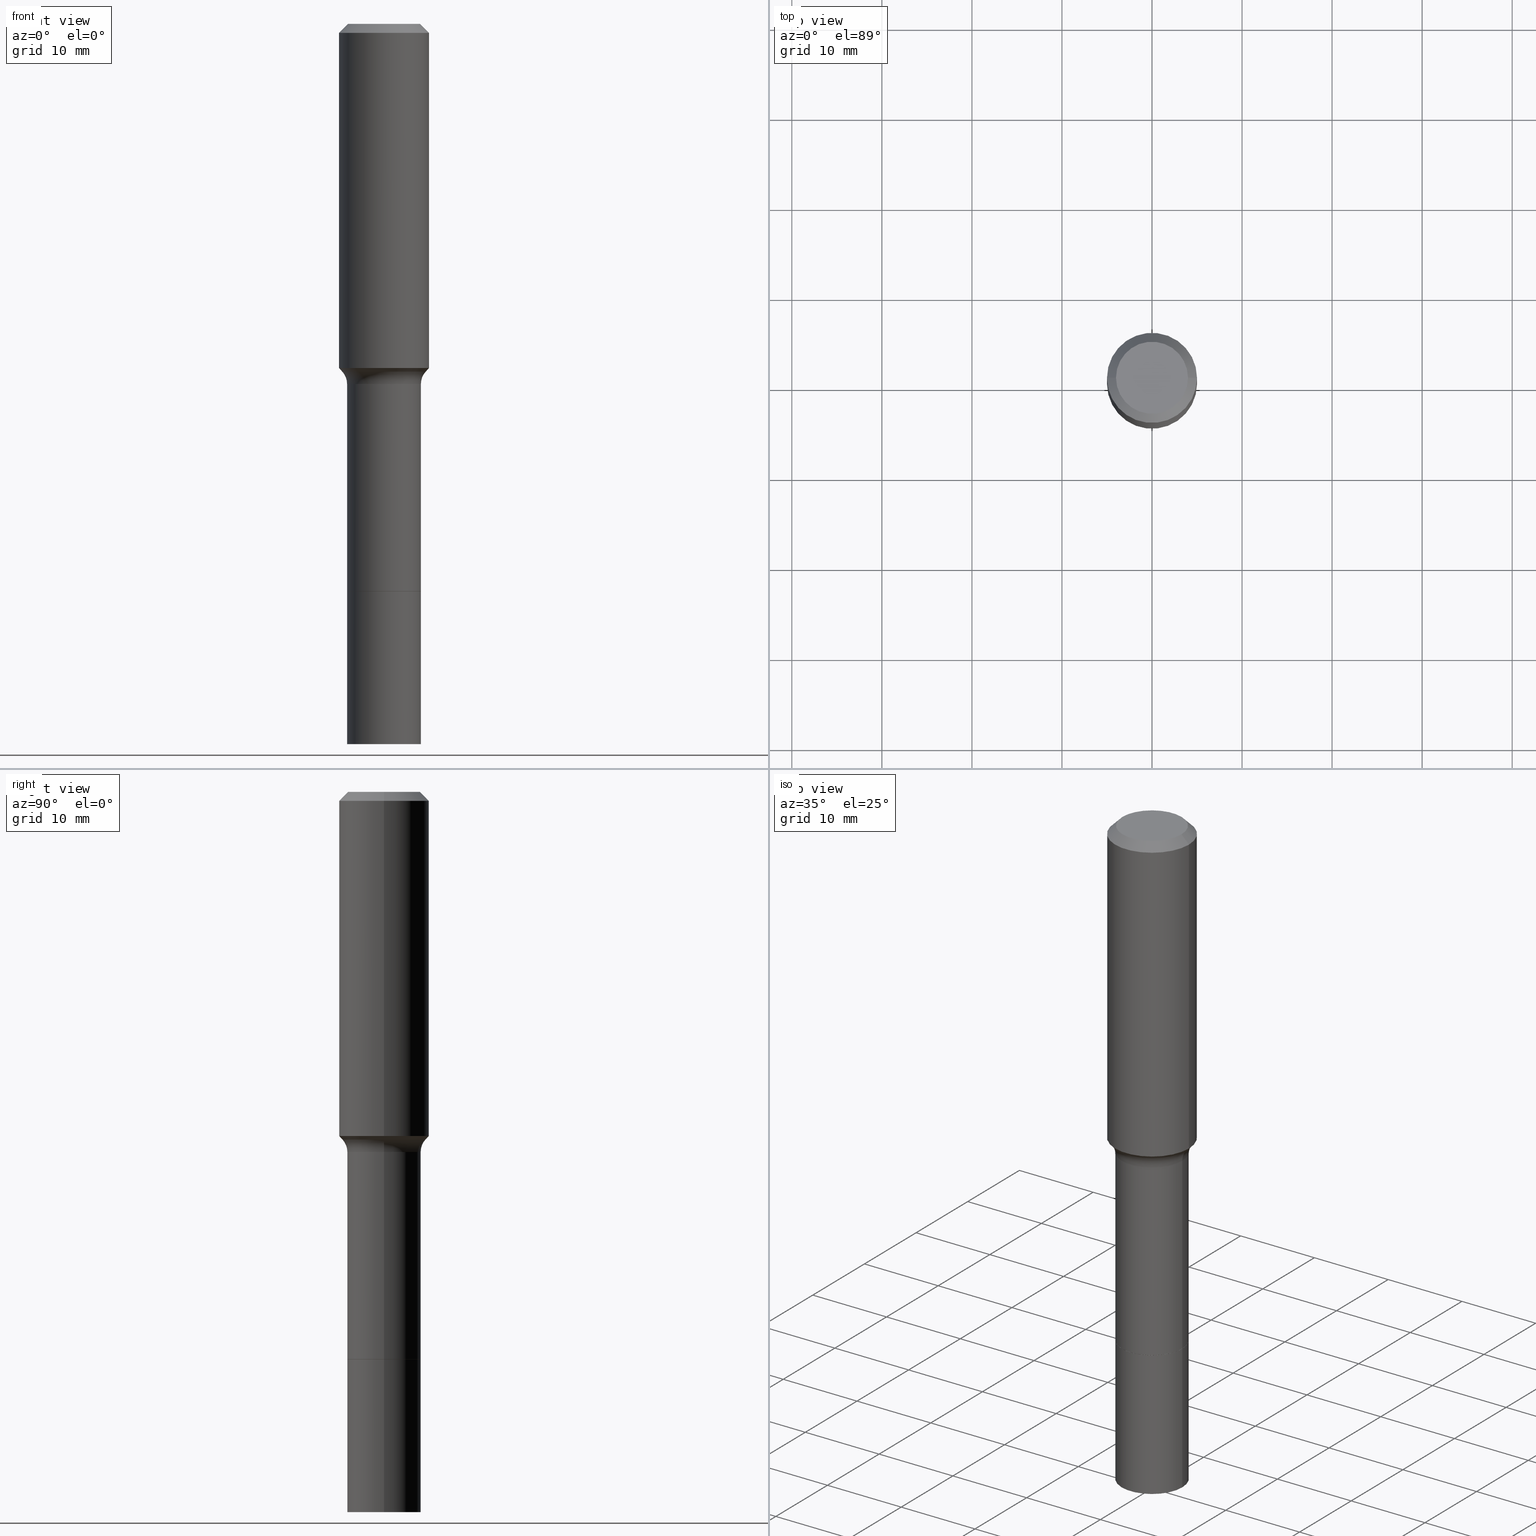
[diagram: canonical four-view strip — front | top / right | iso, engineering-drawing reading convention]
A machine part, canonical four-view strip (front | top / right | iso — engineering-drawing reading convention). The complete STEP part file that produces these views, byte-faithful:
ISO-10303-21;
HEADER;
FILE_DESCRIPTION (( 'STEP AP203' ),
    '1' );
FILE_NAME ('67129.STEP',
    '2025-04-01T15:28:39',
    ( '' ),
    ( '' ),
    'SwSTEP 2.0',
    'SolidWorks 2024',
    '' );
FILE_SCHEMA (( 'CONFIG_CONTROL_DESIGN' ));
ENDSEC;

DATA;
#1 = LOCAL_TIME ( 11, 28, 39.00000000000000000, #308 ) ;
#2 = CALENDAR_DATE ( 2025, 1, 4 ) ;
#3 = CC_DESIGN_PERSON_AND_ORGANIZATION_ASSIGNMENT ( #155, #508, ( #273 ) ) ;
#4 = DIRECTION ( 'NONE',  ( -0.6819983600625033615, 7.399397606724305509E-15, 0.7313537016191660189 ) ) ;
#5 = ORIENTED_EDGE ( 'NONE', *, *, #182, .F. ) ;
#6 = DIRECTION ( 'NONE',  ( 1.000000000000000000, -6.982962677686265133E-15, 4.883557194083112340E-29 ) ) ;
#7 = AXIS2_PLACEMENT_3D ( 'NONE', #314, #38, #199 ) ;
#8 = DIRECTION ( 'NONE',  ( 1.000000000000000000, -6.982962677686266711E-15, 0.000000000000000000 ) ) ;
#9 = EDGE_LOOP ( 'NONE', ( #488, #184, #497, #345 ) ) ;
#10 = CARTESIAN_POINT ( 'NONE',  ( 6.066229920622851108E-29, -8.660968609134307449E-15, -2.480600000000000360 ) ) ;
#11 = ORIENTED_EDGE ( 'NONE', *, *, #234, .T. ) ;
#12 = EDGE_LOOP ( 'NONE', ( #375, #18, #180, #228 ) ) ;
#13 = CARTESIAN_POINT ( 'NONE',  ( 0.2413999999999999202, -7.183373706535882142E-15, -1.574600000000000222 ) ) ;
#14 = AXIS2_PLACEMENT_3D ( 'NONE', #86, #170, #253 ) ;
#15 = ORIENTED_EDGE ( 'NONE', *, *, #420, .T. ) ;
#16 = DIRECTION ( 'NONE',  ( -2.445468806185136597E-29, 3.491481338843145583E-15, 1.000000000000000000 ) ) ;
#17 = APPROVAL ( #392, 'UNSPECIFIED' ) ;
#18 = ORIENTED_EDGE ( 'NONE', *, *, #27, .T. ) ;
#19 = CLOSED_SHELL ( 'NONE', ( #227, #57, #205, #39, #309, #343, #123, #383, #59, #301, #481, #330, #85, #445 ) ) ;
#20 = ORIENTED_EDGE ( 'NONE', *, *, #427, .T. ) ;
#21 = CARTESIAN_POINT ( 'NONE',  ( 0.1828917038704662712, -6.584317694545944374E-15, -1.520040131195000033 ) ) ;
#22 = CIRCLE ( 'NONE', #14, 0.1828917038704662712 ) ;
#23 = AXIS2_PLACEMENT_3D ( 'NONE', #267, #470, #500 ) ;
#24 = VERTEX_POINT ( 'NONE', #504 ) ;
#25 = CARTESIAN_POINT ( 'NONE',  ( -9.427742298522567634E-47, 1.346031739168368355E-32, 3.855188123715870730E-18 ) ) ;
#26 = FACE_OUTER_BOUND ( 'NONE', #9, .T. ) ;
#27 = EDGE_CURVE ( 'NONE', #449, #24, #430, .T. ) ;
#28 = COORDINATED_UNIVERSAL_TIME_OFFSET ( 5, 0, .BEHIND. ) ;
#29 = DIRECTION ( 'NONE',  ( 1.000000000000000000, -6.982962677686271444E-15, 0.000000000000000000 ) ) ;
#30 =( NAMED_UNIT ( * ) PLANE_ANGLE_UNIT ( ) SI_UNIT ( $, .RADIAN. ) );
#31 = CIRCLE ( 'NONE', #116, 0.1608999999999999875 ) ;
#32 = CIRCLE ( 'NONE', #241, 0.1968500000000001915 ) ;
#33 = CARTESIAN_POINT ( 'NONE',  ( 3.717210724986935455E-29, -5.307191752360029493E-15, -1.520040131195000033 ) ) ;
#34 = CC_DESIGN_PERSON_AND_ORGANIZATION_ASSIGNMENT ( #466, #100, ( #283 ) ) ;
#35 = FACE_OUTER_BOUND ( 'NONE', #341, .T. ) ;
#36 = LINE ( 'NONE', #110, #493 ) ;
#37 = AXIS2_PLACEMENT_3D ( 'NONE', #145, #310, #183 ) ;
#38 = DIRECTION ( 'NONE',  ( -2.445468806185136597E-29, 3.491481338843145583E-15, 1.000000000000000000 ) ) ;
#39 = ADVANCED_FACE ( 'NONE', ( #340 ), #327, .T. ) ;
#40 = PLANE ( 'NONE',  #87 ) ;
#41 = DIRECTION ( 'NONE',  ( -2.445468806185136597E-29, 3.491481338843145583E-15, 1.000000000000000000 ) ) ;
#42 = ORIENTED_EDGE ( 'NONE', *, *, #133, .F. ) ;
#43 = CARTESIAN_POINT ( 'NONE',  ( 0.1614000000000000157, -9.786273044643450459E-15, -2.480100000000000193 ) ) ;
#44 = CARTESIAN_POINT ( 'NONE',  ( 6.066229920622851108E-29, -8.660968609134307449E-15, -2.480600000000000360 ) ) ;
#45 = AXIS2_PLACEMENT_3D ( 'NONE', #263, #237, #478 ) ;
#46 = CARTESIAN_POINT ( 'NONE',  ( 9.627810689950950651E-31, -1.374596203102556054E-16, -0.03937000000000027977 ) ) ;
#47 = APPROVAL_PERSON_ORGANIZATION ( #194, #288, #317 ) ;
#48 = VERTEX_POINT ( 'NONE', #431 ) ;
#49 = DIRECTION ( 'NONE',  ( -6.982962677686266711E-15, -1.000000000000000000, 3.491481338843145583E-15 ) ) ;
#50 = CARTESIAN_POINT ( 'NONE',  ( 0.000000000000000000, 0.000000000000000000, 0.000000000000000000 ) ) ;
#51 = CYLINDRICAL_SURFACE ( 'NONE', #464, 0.1614000000000000989 ) ;
#52 = VERTEX_POINT ( 'NONE', #462 ) ;
#53 = CONICAL_SURFACE ( 'NONE', #97, 0.1608999999999999875, 0.7853981633973118326 ) ;
#54 = APPROVAL_PERSON_ORGANIZATION ( #512, #109, #107 ) ;
#55 = ORIENTED_EDGE ( 'NONE', *, *, #354, .F. ) ;
#56 = DIRECTION ( 'NONE',  ( -2.445468806185136597E-29, 3.491481338843145583E-15, 1.000000000000000000 ) ) ;
#57 = ADVANCED_FACE ( 'NONE', ( #26 ), #472, .T. ) ;
#58 = ORIENTED_EDGE ( 'NONE', *, *, #295, .F. ) ;
#59 = ADVANCED_FACE ( 'NONE', ( #245 ), #197, .T. ) ;
#60 = ORIENTED_EDGE ( 'NONE', *, *, #152, .F. ) ;
#61 = LENGTH_MEASURE_WITH_UNIT ( LENGTH_MEASURE( 0.02539999999999999897 ), #350 );
#62 = CIRCLE ( 'NONE', #458, 0.1613999999999998769 ) ;
#63 = AXIS2_PLACEMENT_3D ( 'NONE', #381, #496, #332 ) ;
#64 = VERTEX_POINT ( 'NONE', #323 ) ;
#65 = DIRECTION ( 'NONE',  ( -2.445468806185136597E-29, 3.491481338843145583E-15, 1.000000000000000000 ) ) ;
#66 = APPROVAL_DATE_TIME ( #435, #109 ) ;
#67 = PERSON_AND_ORGANIZATION_ROLE ( 'classification_officer' ) ;
#68 = DIRECTION ( 'NONE',  ( -2.445468806185136877E-29, 3.491481338843145188E-15, 1.000000000000000000 ) ) ;
#69 = CC_DESIGN_PERSON_AND_ORGANIZATION_ASSIGNMENT ( #151, #67, ( #89 ) ) ;
#70 = DATE_AND_TIME ( #204, #216 ) ;
#71 = ORGANIZATION ( 'UNSPECIFIED', 'UNSPECIFIED', '' ) ;
#72 = CARTESIAN_POINT ( 'NONE',  ( -0.1608999999999999875, -7.515056120122195532E-15, -2.480600000000000360 ) ) ;
#73 = DIRECTION ( 'NONE',  ( 1.000000000000000000, -6.982962677686265922E-15, 4.876223630392693006E-29 ) ) ;
#74 = CARTESIAN_POINT ( 'NONE',  ( 6.066229920622851108E-29, -8.660968609134307449E-15, -2.480600000000000360 ) ) ;
#75 = EDGE_CURVE ( 'NONE', #101, #467, #280, .T. ) ;
#76 = DIRECTION ( 'NONE',  ( 1.000000000000000000, -6.982962677686266711E-15, 4.876176775795935793E-29 ) ) ;
#77 = SHAPE_DEFINITION_REPRESENTATION ( #166, #94 ) ;
#78 = CIRCLE ( 'NONE', #386, 0.08000000000000009881 ) ;
#79 = AXIS2_PLACEMENT_3D ( 'NONE', #93, #16, #8 ) ;
#80 = ORIENTED_EDGE ( 'NONE', *, *, #315, .F. ) ;
#81 = ORIENTED_EDGE ( 'NONE', *, *, #339, .T. ) ;
#82 = CARTESIAN_POINT ( 'NONE',  ( 7.702248551960706711E-29, -1.099676962482037231E-14, -3.149600000000000399 ) ) ;
#83 = DIRECTION ( 'NONE',  ( -2.445468806185136597E-29, 3.491481338843145583E-15, 1.000000000000000000 ) ) ;
#84 = PRODUCT ( '67129', '67129', '', ( #188 ) ) ;
#85 = ADVANCED_FACE ( 'NONE', ( #318 ), #279, .F. ) ;
#86 = CARTESIAN_POINT ( 'NONE',  ( 3.717210724986935455E-29, -5.307191752360029493E-15, -1.520040131195000033 ) ) ;
#87 = AXIS2_PLACEMENT_3D ( 'NONE', #154, #165, #113 ) ;
#88 = DIRECTION ( 'NONE',  ( 1.000000000000000000, -6.982962677686265133E-15, 0.000000000000000000 ) ) ;
#89 = SECURITY_CLASSIFICATION ( '', '', #474 ) ;
#90 = CYLINDRICAL_SURFACE ( 'NONE', #257, 0.1968500000000001082 ) ;
#91 = ORIENTED_EDGE ( 'NONE', *, *, #176, .T. ) ;
#92 = VERTEX_POINT ( 'NONE', #518 ) ;
#93 = CARTESIAN_POINT ( 'NONE',  ( 3.680605871854049505E-29, -5.254929723377562819E-15, -1.505071691180429383 ) ) ;
#94 = ADVANCED_BREP_SHAPE_REPRESENTATION ( '67129', ( #494, #136, #336 ), #121 ) ;
#95 = ORIENTED_EDGE ( 'NONE', *, *, #393, .F. ) ;
#96 = APPLICATION_PROTOCOL_DEFINITION ( 'international standard', 'config_control_design', 1994, #483 ) ;
#97 = AXIS2_PLACEMENT_3D ( 'NONE', #74, #434, #391 ) ;
#98 = CIRCLE ( 'NONE', #130, 0.1574800000000000089 ) ;
#99 = ORIENTED_EDGE ( 'NONE', *, *, #459, .F. ) ;
#100 = PERSON_AND_ORGANIZATION_ROLE ( 'creator' ) ;
#101 = VERTEX_POINT ( 'NONE', #278 ) ;
#102 = EDGE_LOOP ( 'NONE', ( #428, #452, #212, #143 ) ) ;
#103 = DIRECTION ( 'NONE',  ( 0.7071067811865450192, -7.319954787623246579E-15, -0.7071067811865500152 ) ) ;
#104 = CIRCLE ( 'NONE', #352, 0.1614000000000000157 ) ;
#105 = CONICAL_SURFACE ( 'NONE', #63, 0.1608999999999999875, 0.7853981633973118326 ) ;
#106 = CARTESIAN_POINT ( 'NONE',  ( 3.850635182219116347E-29, -5.497686516142417553E-15, -1.574600000000000222 ) ) ;
#107 = APPROVAL_ROLE ( '' ) ;
#108 = DATE_TIME_ROLE ( 'classification_date' ) ;
#109 = APPROVAL ( #192, 'UNSPECIFIED' ) ;
#110 = CARTESIAN_POINT ( 'NONE',  ( 0.1613999999999999602, -1.127050176178562936E-15, 7.870149316134637915E-30 ) ) ;
#111 = CARTESIAN_POINT ( 'NONE',  ( -0.1828917038704662712, -4.007668036200557411E-15, -1.520040131195000033 ) ) ;
#112 = LINE ( 'NONE', #439, #141 ) ;
#113 = DIRECTION ( 'NONE',  ( -1.000000000000000000, 6.982962677686265922E-15, -4.876176775795935793E-29 ) ) ;
#114 = APPROVAL_DATE_TIME ( #476, #288 ) ;
#115 = CIRCLE ( 'NONE', #208, 0.1614000000000000157 ) ;
#116 = AXIS2_PLACEMENT_3D ( 'NONE', #44, #414, #373 ) ;
#117 = DIRECTION ( 'NONE',  ( 1.000000000000000000, -6.982962677686265922E-15, 4.876176775795935793E-29 ) ) ;
#118 = DIRECTION ( 'NONE',  ( 1.000000000000000000, -6.982962677686267499E-15, 0.000000000000000000 ) ) ;
#119 = CARTESIAN_POINT ( 'NONE',  ( -9.427742298522567634E-47, 1.346031739168368355E-32, 3.855188123715870730E-18 ) ) ;
#120 = VECTOR ( 'NONE', #4, 39.37007874015748143 ) ;
#121 =( GEOMETRIC_REPRESENTATION_CONTEXT ( 3 ) GLOBAL_UNCERTAINTY_ASSIGNED_CONTEXT ( ( #374 ) ) GLOBAL_UNIT_ASSIGNED_CONTEXT ( ( #346, #30, #232 ) ) REPRESENTATION_CONTEXT ( 'NONE', 'WORKASPACE' ) );
#122 = EDGE_LOOP ( 'NONE', ( #80, #210, #495, #99 ) ) ;
#123 = ADVANCED_FACE ( 'NONE', ( #153 ), #281, .T. ) ;
#124 = ORIENTED_EDGE ( 'NONE', *, *, #27, .F. ) ;
#125 = CARTESIAN_POINT ( 'NONE',  ( 6.066229920622851108E-29, -8.660968609134307449E-15, -2.480600000000000360 ) ) ;
#126 = ORIENTED_EDGE ( 'NONE', *, *, #157, .T. ) ;
#127 = DIRECTION ( 'NONE',  ( 1.000000000000000000, -6.982962677686265922E-15, 0.000000000000000000 ) ) ;
#128 = CARTESIAN_POINT ( 'NONE',  ( -0.1608999999999999875, -7.517705347296307522E-15, -2.480600000000000360 ) ) ;
#129 = AXIS2_PLACEMENT_3D ( 'NONE', #282, #239, #444 ) ;
#130 = AXIS2_PLACEMENT_3D ( 'NONE', #25, #56, #429 ) ;
#131 = ORIENTED_EDGE ( 'NONE', *, *, #420, .F. ) ;
#132 = DIRECTION ( 'NONE',  ( 1.000000000000000000, -6.982962677686265133E-15, 4.883557194083112340E-29 ) ) ;
#133 = EDGE_CURVE ( 'NONE', #48, #92, #62, .T. ) ;
#134 = ORIENTED_EDGE ( 'NONE', *, *, #295, .T. ) ;
#135 = DIRECTION ( 'NONE',  ( -2.445468806185136597E-29, 3.491481338843145583E-15, 1.000000000000000000 ) ) ;
#136 = MANIFOLD_SOLID_BREP ( 'Body-Move/Copy2[2]', #19 ) ;
#137 = ORIENTED_EDGE ( 'NONE', *, *, #256, .F. ) ;
#138 = CARTESIAN_POINT ( 'NONE',  ( -0.1614000000000000157, -5.931638716786849346E-15, -2.480100000000000193 ) ) ;
#139 = ORIENTED_EDGE ( 'NONE', *, *, #311, .F. ) ;
#140 = PERSON_AND_ORGANIZATION ( #161, #71 ) ;
#141 = VECTOR ( 'NONE', #351, 39.37007874015748143 ) ;
#142 = LOCAL_TIME ( 11, 28, 39.00000000000000000, #28 ) ;
#143 = ORIENTED_EDGE ( 'NONE', *, *, #182, .T. ) ;
#144 = PERSON_AND_ORGANIZATION_ROLE ( 'design_owner' ) ;
#145 = CARTESIAN_POINT ( 'NONE',  ( 7.702248551960706711E-29, -1.099676962482037231E-14, -3.149600000000000399 ) ) ;
#146 = LINE ( 'NONE', #156, #285 ) ;
#147 = VECTOR ( 'NONE', #516, 39.37007874015748143 ) ;
#148 = APPROVAL_PERSON_ORGANIZATION ( #140, #17, #236 ) ;
#149 = DIRECTION ( 'NONE',  ( -2.445468806185136877E-29, 3.491481338843145188E-15, 1.000000000000000000 ) ) ;
#150 = CARTESIAN_POINT ( 'NONE',  ( 0.000000000000000000, 0.000000000000000000, 0.000000000000000000 ) ) ;
#151 = PERSON_AND_ORGANIZATION ( #161, #71 ) ;
#152 = EDGE_CURVE ( 'NONE', #254, #64, #242, .T. ) ;
#153 = FACE_OUTER_BOUND ( 'NONE', #266, .T. ) ;
#154 = CARTESIAN_POINT ( 'NONE',  ( -4.713871149261283817E-47, 6.730158695841841775E-33, 1.927594061857935365E-18 ) ) ;
#155 = PERSON_AND_ORGANIZATION ( #161, #71 ) ;
#156 = CARTESIAN_POINT ( 'NONE',  ( 0.1614000000000000989, -9.788018785312872751E-15, -2.480600000000000360 ) ) ;
#157 = EDGE_CURVE ( 'NONE', #251, #268, #112, .T. ) ;
#158 = DIRECTION ( 'NONE',  ( -2.445468806185136597E-29, 3.491481338843145583E-15, 1.000000000000000000 ) ) ;
#159 = VECTOR ( 'NONE', #514, 39.37007874015748143 ) ;
#160 = CIRCLE ( 'NONE', #7, 0.1968500000000000250 ) ;
#161 = PERSON ( 'UNSPECIFIED', 'UNSPECIFIED', 'UNSPECIFIED', ('UNSPECIFIED'), ('UNSPECIFIED'), ('UNSPECIFIED') ) ;
#162 = DIRECTION ( 'NONE',  ( -2.445468806185136597E-29, 3.491481338843145583E-15, 1.000000000000000000 ) ) ;
#163 = CARTESIAN_POINT ( 'NONE',  ( 0.000000000000000000, 0.000000000000000000, 0.000000000000000000 ) ) ;
#164 = LINE ( 'NONE', #215, #501 ) ;
#165 = DIRECTION ( 'NONE',  ( 2.438088387897960049E-29, -3.491481338843145188E-15, -1.000000000000000000 ) ) ;
#166 = PRODUCT_DEFINITION_SHAPE ( 'NONE', 'NONE',  #283 ) ;
#167 = EDGE_LOOP ( 'NONE', ( #60, #305, #191, #5 ) ) ;
#168 = CC_DESIGN_PERSON_AND_ORGANIZATION_ASSIGNMENT ( #322, #244, ( #273 ) ) ;
#169 = AXIS2_PLACEMENT_3D ( 'NONE', #119, #443, #73 ) ;
#170 = DIRECTION ( 'NONE',  ( -2.445468806185136597E-29, 3.491481338843145583E-15, 1.000000000000000000 ) ) ;
#171 = AXIS2_PLACEMENT_3D ( 'NONE', #220, #290, #88 ) ;
#172 = ORIENTED_EDGE ( 'NONE', *, *, #324, .T. ) ;
#173 = PLANE ( 'NONE',  #387 ) ;
#174 = DIRECTION ( 'NONE',  ( -0.7071067811865450192, 2.468850131082230634E-15, -0.7071067811865500152 ) ) ;
#175 = ORIENTED_EDGE ( 'NONE', *, *, #274, .T. ) ;
#176 = EDGE_CURVE ( 'NONE', #449, #293, #275, .T. ) ;
#177 = CARTESIAN_POINT ( 'NONE',  ( 3.850635182219116347E-29, -5.497686516142417553E-15, -1.574600000000000222 ) ) ;
#178 = DESIGN_CONTEXT ( 'detailed design', #483, 'design' ) ;
#179 = AXIS2_PLACEMENT_3D ( 'NONE', #412, #366, #6 ) ;
#180 = ORIENTED_EDGE ( 'NONE', *, *, #256, .T. ) ;
#181 = DIRECTION ( 'NONE',  ( -1.000000000000000000, 6.982962677686265922E-15, -4.876176775795935793E-29 ) ) ;
#182 = EDGE_CURVE ( 'NONE', #64, #426, #160, .T. ) ;
#183 = DIRECTION ( 'NONE',  ( 1.000000000000000000, -6.982962677686262766E-15, 0.000000000000000000 ) ) ;
#184 = ORIENTED_EDGE ( 'NONE', *, *, #506, .T. ) ;
#185 = APPLICATION_PROTOCOL_DEFINITION ( 'international standard', 'config_control_design', 1994, #193 ) ;
#186 = EDGE_CURVE ( 'NONE', #251, #249, #423, .T. ) ;
#187 = ORIENTED_EDGE ( 'NONE', *, *, #354, .T. ) ;
#188 = MECHANICAL_CONTEXT ( 'NONE', #193, 'mechanical' ) ;
#189 = AXIS2_PLACEMENT_3D ( 'NONE', #447, #41, #405 ) ;
#190 = ORIENTED_EDGE ( 'NONE', *, *, #186, .F. ) ;
#191 = ORIENTED_EDGE ( 'NONE', *, *, #270, .T. ) ;
#192 = APPROVAL_STATUS ( 'not_yet_approved' ) ;
#193 = APPLICATION_CONTEXT ( 'configuration controlled 3d designs of mechanical parts and assemblies' ) ;
#194 = PERSON_AND_ORGANIZATION ( #161, #71 ) ;
#195 = DIRECTION ( 'NONE',  ( 1.000000000000000000, -6.982962677686265133E-15, 4.876176775795935232E-29 ) ) ;
#196 = DIRECTION ( 'NONE',  ( 1.000000000000000000, 0.000000000000000000, 0.000000000000000000 ) ) ;
#197 = CONICAL_SURFACE ( 'NONE', #214, 0.1828917038704662712, 0.7504915783575683008 ) ;
#198 = VECTOR ( 'NONE', #174, 39.37007874015748143 ) ;
#199 = DIRECTION ( 'NONE',  ( 1.000000000000000000, -6.982962677686265922E-15, 0.000000000000000000 ) ) ;
#200 = COORDINATED_UNIVERSAL_TIME_OFFSET ( 5, 0, .BEHIND. ) ;
#201 = EDGE_CURVE ( 'NONE', #268, #451, #115, .T. ) ;
#202 = DIRECTION ( 'NONE',  ( -2.445468806185136597E-29, 3.491481338843145583E-15, 1.000000000000000000 ) ) ;
#203 = LINE ( 'NONE', #357, #147 ) ;
#204 = CALENDAR_DATE ( 2025, 1, 4 ) ;
#205 = ADVANCED_FACE ( 'NONE', ( #480 ), #356, .T. ) ;
#206 = DIRECTION ( 'NONE',  ( -2.445468806185136877E-29, 3.491481338843145188E-15, 1.000000000000000000 ) ) ;
#207 = FACE_OUTER_BOUND ( 'NONE', #337, .T. ) ;
#208 = AXIS2_PLACEMENT_3D ( 'NONE', #401, #202, #395 ) ;
#209 = DIRECTION ( 'NONE',  ( -2.445468806185136597E-29, 3.491481338843145583E-15, 1.000000000000000000 ) ) ;
#210 = ORIENTED_EDGE ( 'NONE', *, *, #75, .T. ) ;
#211 = CC_DESIGN_DATE_AND_TIME_ASSIGNMENT ( #432, #390, ( #283 ) ) ;
#212 = ORIENTED_EDGE ( 'NONE', *, *, #438, .T. ) ;
#213 = FACE_OUTER_BOUND ( 'NONE', #217, .T. ) ;
#214 = AXIS2_PLACEMENT_3D ( 'NONE', #446, #162, #118 ) ;
#215 = CARTESIAN_POINT ( 'NONE',  ( 0.1968500000000001082, -1.374596203102542397E-15, 9.598753983154305062E-30 ) ) ;
#216 = LOCAL_TIME ( 11, 28, 39.00000000000000000, #200 ) ;
#217 = EDGE_LOOP ( 'NONE', ( #425, #413, #126, #380 ) ) ;
#218 = DIRECTION ( 'NONE',  ( -2.445468806185136597E-29, 3.491481338843145583E-15, 1.000000000000000000 ) ) ;
#219 = ORIENTED_EDGE ( 'NONE', *, *, #490, .T. ) ;
#220 = CARTESIAN_POINT ( 'NONE',  ( 3.850635182219116347E-29, -5.497686516142417553E-15, -1.574600000000000222 ) ) ;
#221 = LINE ( 'NONE', #377, #198 ) ;
#222 = CIRCLE ( 'NONE', #320, 0.1613999999999999879 ) ;
#223 = AXIS2_PLACEMENT_3D ( 'NONE', #46, #218, #127 ) ;
#224 = EDGE_LOOP ( 'NONE', ( #299, #187, #418, #131 ) ) ;
#225 = ORIENTED_EDGE ( 'NONE', *, *, #238, .F. ) ;
#226 = CARTESIAN_POINT ( 'NONE',  ( 0.1968500000000000250, -1.487948651171581601E-15, -0.03937000000000027977 ) ) ;
#227 = ADVANCED_FACE ( 'NONE', ( #35 ), #53, .T. ) ;
#228 = ORIENTED_EDGE ( 'NONE', *, *, #234, .F. ) ;
#229 = CARTESIAN_POINT ( 'NONE',  ( 9.627810689950950651E-31, -1.374596203102556054E-16, -0.03937000000000027977 ) ) ;
#230 = EDGE_LOOP ( 'NONE', ( #172, #11 ) ) ;
#231 = AXIS2_PLACEMENT_3D ( 'NONE', #33, #209, #507 ) ;
#232 =( NAMED_UNIT ( * ) SI_UNIT ( $, .STERADIAN. ) SOLID_ANGLE_UNIT ( ) );
#233 = CC_DESIGN_APPROVAL ( #109, ( #273 ) ) ;
#234 = EDGE_CURVE ( 'NONE', #293, #260, #335, .T. ) ;
#235 = EDGE_LOOP ( 'NONE', ( #134, #91, #421, #137 ) ) ;
#236 = APPROVAL_ROLE ( '' ) ;
#237 = DIRECTION ( 'NONE',  ( 2.445468806185136597E-29, -3.491481338843145583E-15, -1.000000000000000000 ) ) ;
#238 = EDGE_CURVE ( 'NONE', #268, #92, #36, .T. ) ;
#239 = DIRECTION ( 'NONE',  ( -2.445468806185136597E-29, 3.491481338843145583E-15, 1.000000000000000000 ) ) ;
#240 = VECTOR ( 'NONE', #149, 39.37007874015748143 ) ;
#241 = AXIS2_PLACEMENT_3D ( 'NONE', #454, #135, #422 ) ;
#242 = LINE ( 'NONE', #477, #342 ) ;
#243 = DIRECTION ( 'NONE',  ( -2.445468806185136597E-29, 3.491481338843145583E-15, 1.000000000000000000 ) ) ;
#244 = PERSON_AND_ORGANIZATION_ROLE ( 'design_supplier' ) ;
#245 = FACE_OUTER_BOUND ( 'NONE', #122, .T. ) ;
#246 = DIRECTION ( 'NONE',  ( 1.000000000000000000, -6.982962677686271444E-15, 0.000000000000000000 ) ) ;
#247 = AXIS2_PLACEMENT_3D ( 'NONE', #469, #302, #271 ) ;
#248 = DIRECTION ( 'NONE',  ( 1.000000000000000000, -6.982962677686269866E-15, 0.000000000000000000 ) ) ;
#249 = VERTEX_POINT ( 'NONE', #72 ) ;
#250 = DIRECTION ( 'NONE',  ( 1.000000000000000000, -6.982962677686266711E-15, 4.876176775795935793E-29 ) ) ;
#251 = VERTEX_POINT ( 'NONE', #398 ) ;
#252 = DIRECTION ( 'NONE',  ( -1.000000000000000000, 6.982962677686265922E-15, -4.876176775795935793E-29 ) ) ;
#253 = DIRECTION ( 'NONE',  ( 1.000000000000000000, -6.982962677686267499E-15, 0.000000000000000000 ) ) ;
#254 = VERTEX_POINT ( 'NONE', #515 ) ;
#255 = CARTESIAN_POINT ( 'NONE',  ( -0.1574800000000000089, 1.168406772637159618E-15, 3.855188123707939751E-18 ) ) ;
#256 = EDGE_CURVE ( 'NONE', #24, #260, #146, .T. ) ;
#257 = AXIS2_PLACEMENT_3D ( 'NONE', #50, #292, #250 ) ;
#258 = ORIENTED_EDGE ( 'NONE', *, *, #360, .F. ) ;
#259 = FACE_OUTER_BOUND ( 'NONE', #307, .T. ) ;
#260 = VERTEX_POINT ( 'NONE', #333 ) ;
#261 = LINE ( 'NONE', #21, #159 ) ;
#262 = AXIS2_PLACEMENT_3D ( 'NONE', #13, #49, #371 ) ;
#263 = CARTESIAN_POINT ( 'NONE',  ( 9.627810689950950651E-31, -1.374596203102556054E-16, -0.03937000000000027977 ) ) ;
#264 = EDGE_CURVE ( 'NONE', #249, #451, #487, .T. ) ;
#265 = CALENDAR_DATE ( 2025, 1, 4 ) ;
#266 = EDGE_LOOP ( 'NONE', ( #388, #175, #289, #42 ) ) ;
#267 = CARTESIAN_POINT ( 'NONE',  ( 6.066229920622851108E-29, -8.660968609134307449E-15, -2.480600000000000360 ) ) ;
#268 = VERTEX_POINT ( 'NONE', #43 ) ;
#269 = FACE_OUTER_BOUND ( 'NONE', #102, .T. ) ;
#270 = EDGE_CURVE ( 'NONE', #404, #426, #164, .T. ) ;
#271 = DIRECTION ( 'NONE',  ( 1.000000000000000000, -6.982962677686267499E-15, 0.000000000000000000 ) ) ;
#272 = CALENDAR_DATE ( 2025, 1, 4 ) ;
#273 = PRODUCT_DEFINITION_FORMATION_WITH_SPECIFIED_SOURCE ( 'ANY', '', #84, .NOT_KNOWN. ) ;
#274 = EDGE_CURVE ( 'NONE', #451, #268, #104, .T. ) ;
#275 = LINE ( 'NONE', #511, #240 ) ;
#276 = COORDINATED_UNIVERSAL_TIME_OFFSET ( 5, 0, .BEHIND. ) ;
#277 = APPROVAL_STATUS ( 'not_yet_approved' ) ;
#278 = CARTESIAN_POINT ( 'NONE',  ( -0.1828917038704662990, -4.007668036200557411E-15, -1.520040131195000033 ) ) ;
#279 = PLANE ( 'NONE',  #296 ) ;
#280 = CIRCLE ( 'NONE', #231, 0.1828917038704662712 ) ;
#281 = CYLINDRICAL_SURFACE ( 'NONE', #304, 0.1613999999999999602 ) ;
#282 = CARTESIAN_POINT ( 'NONE',  ( 6.066229920622851108E-29, -8.660968609134307449E-15, -2.480600000000000360 ) ) ;
#283 = PRODUCT_DEFINITION ( 'UNKNOWN', '', #273, #178 ) ;
#284 = DIRECTION ( 'NONE',  ( -2.445468806185136877E-29, 3.491481338843145188E-15, 1.000000000000000000 ) ) ;
#285 = VECTOR ( 'NONE', #206, 39.37007874015748143 ) ;
#286 = VECTOR ( 'NONE', #103, 39.37007874015748143 ) ;
#287 = EDGE_LOOP ( 'NONE', ( #55, #139, #15, #20 ) ) ;
#288 = APPROVAL ( #277, 'UNSPECIFIED' ) ;
#289 = ORIENTED_EDGE ( 'NONE', *, *, #238, .T. ) ;
#290 = DIRECTION ( 'NONE',  ( -2.445468806185136597E-29, 3.491481338843145583E-15, 1.000000000000000000 ) ) ;
#291 = DIRECTION ( 'NONE',  ( 7.105427357601001859E-15, 1.000000000000000000, -3.491481338843145583E-15 ) ) ;
#292 = DIRECTION ( 'NONE',  ( -2.445468806185136597E-29, 3.491481338843145583E-15, 1.000000000000000000 ) ) ;
#293 = VERTEX_POINT ( 'NONE', #297 ) ;
#294 = FACE_OUTER_BOUND ( 'NONE', #235, .T. ) ;
#295 = EDGE_CURVE ( 'NONE', #24, #449, #402, .T. ) ;
#296 = AXIS2_PLACEMENT_3D ( 'NONE', #359, #399, #117 ) ;
#297 = CARTESIAN_POINT ( 'NONE',  ( -0.1613999999999999879, -8.682053141460538265E-15, -2.480600000000000360 ) ) ;
#298 = ORIENTED_EDGE ( 'NONE', *, *, #201, .T. ) ;
#299 = ORIENTED_EDGE ( 'NONE', *, *, #75, .F. ) ;
#300 = DIRECTION ( 'NONE',  ( -2.445468806185136597E-29, 3.491481338843145583E-15, 1.000000000000000000 ) ) ;
#301 = ADVANCED_FACE ( 'NONE', ( #417 ), #90, .T. ) ;
#302 = DIRECTION ( 'NONE',  ( -2.445468806185136597E-29, 3.491481338843145583E-15, 1.000000000000000000 ) ) ;
#303 = DIRECTION ( 'NONE',  ( 2.438088387897960049E-29, -3.491481338843145188E-15, -1.000000000000000000 ) ) ;
#304 = AXIS2_PLACEMENT_3D ( 'NONE', #316, #437, #195 ) ;
#305 = ORIENTED_EDGE ( 'NONE', *, *, #459, .T. ) ;
#306 = PERSON_AND_ORGANIZATION ( #161, #71 ) ;
#307 = EDGE_LOOP ( 'NONE', ( #58, #124 ) ) ;
#308 = COORDINATED_UNIVERSAL_TIME_OFFSET ( 5, 0, .BEHIND. ) ;
#309 = ADVANCED_FACE ( 'NONE', ( #363 ), #448, .F. ) ;
#310 = DIRECTION ( 'NONE',  ( -2.445468806185136597E-29, 3.491481338843145583E-15, 1.000000000000000000 ) ) ;
#311 = EDGE_CURVE ( 'NONE', #467, #101, #22, .T. ) ;
#312 = CARTESIAN_POINT ( 'NONE',  ( 0.000000000000000000, 0.000000000000000000, 0.000000000000000000 ) ) ;
#313 = CC_DESIGN_SECURITY_CLASSIFICATION ( #89, ( #273 ) ) ;
#314 = CARTESIAN_POINT ( 'NONE',  ( 9.627810689950950651E-31, -1.374596203102556054E-16, -0.03937000000000027977 ) ) ;
#315 = EDGE_CURVE ( 'NONE', #101, #254, #436, .T. ) ;
#316 = CARTESIAN_POINT ( 'NONE',  ( 0.000000000000000000, 0.000000000000000000, 0.000000000000000000 ) ) ;
#317 = APPROVAL_ROLE ( '' ) ;
#318 = FACE_OUTER_BOUND ( 'NONE', #460, .T. ) ;
#319 = FACE_OUTER_BOUND ( 'NONE', #287, .T. ) ;
#320 = AXIS2_PLACEMENT_3D ( 'NONE', #364, #362, #246 ) ;
#321 = LOCAL_TIME ( 11, 28, 39.00000000000000000, #394 ) ;
#322 = PERSON_AND_ORGANIZATION ( #161, #71 ) ;
#323 = CARTESIAN_POINT ( 'NONE',  ( -0.1968500000000000250, -1.297491296500151018E-15, -0.03937000000000027977 ) ) ;
#324 = EDGE_CURVE ( 'NONE', #260, #293, #222, .T. ) ;
#325 = CYLINDRICAL_SURFACE ( 'NONE', #378, 0.1613999999999999602 ) ;
#326 = ORIENTED_EDGE ( 'NONE', *, *, #369, .T. ) ;
#327 = CONICAL_SURFACE ( 'NONE', #247, 0.1828917038704662712, 0.7504915783575683008 ) ;
#328 = ORIENTED_EDGE ( 'NONE', *, *, #453, .F. ) ;
#329 = FACE_OUTER_BOUND ( 'NONE', #12, .T. ) ;
#330 = ADVANCED_FACE ( 'NONE', ( #207 ), #40, .F. ) ;
#331 = ORIENTED_EDGE ( 'NONE', *, *, #157, .F. ) ;
#332 = DIRECTION ( 'NONE',  ( 1.000000000000000000, -6.982962677686262766E-15, 0.000000000000000000 ) ) ;
#333 = CARTESIAN_POINT ( 'NONE',  ( 0.1613999999999999879, -9.788018785312872751E-15, -2.480600000000000360 ) ) ;
#334 = CARTESIAN_POINT ( 'NONE',  ( 0.1968500000000000250, -1.512055823412797189E-15, -0.03937000000000027977 ) ) ;
#335 = CIRCLE ( 'NONE', #396, 0.1613999999999999879 ) ;
#336 = AXIS2_PLACEMENT_3D ( 'NONE', #150, #463, #196 ) ;
#337 = EDGE_LOOP ( 'NONE', ( #81, #219 ) ) ;
#338 = PLANE ( 'NONE',  #486 ) ;
#339 = EDGE_CURVE ( 'NONE', #465, #52, #484, .T. ) ;
#340 = FACE_OUTER_BOUND ( 'NONE', #384, .T. ) ;
#341 = EDGE_LOOP ( 'NONE', ( #382, #406, #370, #331 ) ) ;
#342 = VECTOR ( 'NONE', #68, 39.37007874015748143 ) ;
#343 = ADVANCED_FACE ( 'NONE', ( #517 ), #325, .T. ) ;
#344 = CC_DESIGN_APPROVAL ( #288, ( #89 ) ) ;
#345 = ORIENTED_EDGE ( 'NONE', *, *, #438, .F. ) ;
#346 =( CONVERSION_BASED_UNIT ( 'INCH', #61 ) LENGTH_UNIT ( ) NAMED_UNIT ( #365 ) );
#347 = ORIENTED_EDGE ( 'NONE', *, *, #270, .F. ) ;
#348 = DIRECTION ( 'NONE',  ( 2.445468806185136597E-29, -3.491481338843145583E-15, -1.000000000000000000 ) ) ;
#349 = ORIENTED_EDGE ( 'NONE', *, *, #427, .F. ) ;
#350 =( LENGTH_UNIT ( ) NAMED_UNIT ( * ) SI_UNIT ( $, .METRE. ) );
#351 = DIRECTION ( 'NONE',  ( 0.7071067811864509833, -2.468850131081245741E-15, 0.7071067811866440511 ) ) ;
#352 = AXIS2_PLACEMENT_3D ( 'NONE', #482, #83, #248 ) ;
#353 = CALENDAR_DATE ( 2025, 1, 4 ) ;
#354 = EDGE_CURVE ( 'NONE', #101, #48, #78, .T. ) ;
#355 = CARTESIAN_POINT ( 'NONE',  ( 6.066229920622851108E-29, -8.660968609134307449E-15, -2.480600000000000360 ) ) ;
#356 = CYLINDRICAL_SURFACE ( 'NONE', #410, 0.1968500000000001082 ) ;
#357 = CARTESIAN_POINT ( 'NONE',  ( -0.1613999999999999602, 1.146815975516801417E-15, -7.939161235671416085E-30 ) ) ;
#358 = CC_DESIGN_DATE_AND_TIME_ASSIGNMENT ( #70, #108, ( #89 ) ) ;
#359 = CARTESIAN_POINT ( 'NONE',  ( 6.066229920622851108E-29, -8.660968609134307449E-15, -2.480600000000000360 ) ) ;
#360 = EDGE_CURVE ( 'NONE', #467, #404, #261, .T. ) ;
#361 = CLOSED_SHELL ( 'NONE', ( #479, #416, #400, #433 ) ) ;
#362 = DIRECTION ( 'NONE',  ( -2.445468806185136597E-29, 3.491481338843145583E-15, 1.000000000000000000 ) ) ;
#363 = FACE_OUTER_BOUND ( 'NONE', #224, .T. ) ;
#364 = CARTESIAN_POINT ( 'NONE',  ( 6.066229920622851108E-29, -8.660968609134307449E-15, -2.480600000000000360 ) ) ;
#365 = DIMENSIONAL_EXPONENTS ( 1.000000000000000000, 0.000000000000000000, 0.000000000000000000, 0.000000000000000000, 0.000000000000000000, 0.000000000000000000, 0.000000000000000000 ) ;
#366 = DIRECTION ( 'NONE',  ( -2.445468806185136597E-29, 3.491481338843145583E-15, 1.000000000000000000 ) ) ;
#367 = CARTESIAN_POINT ( 'NONE',  ( -0.1614000000000001822, -8.682053141460536687E-15, -3.149600000000000399 ) ) ;
#368 = CC_DESIGN_APPROVAL ( #17, ( #283 ) ) ;
#369 = EDGE_CURVE ( 'NONE', #451, #48, #203, .T. ) ;
#370 = ORIENTED_EDGE ( 'NONE', *, *, #201, .F. ) ;
#371 = DIRECTION ( 'NONE',  ( 1.000000000000000000, -6.982962677686263555E-15, 0.000000000000000000 ) ) ;
#372 = ORIENTED_EDGE ( 'NONE', *, *, #453, .T. ) ;
#373 = DIRECTION ( 'NONE',  ( 1.000000000000000000, -6.982962677686262766E-15, 0.000000000000000000 ) ) ;
#374 = UNCERTAINTY_MEASURE_WITH_UNIT (LENGTH_MEASURE( 1.000000000000000082E-05 ), #346, 'distance_accuracy_value', 'NONE');
#375 = ORIENTED_EDGE ( 'NONE', *, *, #176, .F. ) ;
#376 = CC_DESIGN_PERSON_AND_ORGANIZATION_ASSIGNMENT ( #306, #144, ( #84 ) ) ;
#377 = CARTESIAN_POINT ( 'NONE',  ( -0.1968500000000000250, 1.237136582792286225E-15, -0.03937000000000027977 ) ) ;
#378 = AXIS2_PLACEMENT_3D ( 'NONE', #163, #158, #450 ) ;
#379 = CIRCLE ( 'NONE', #262, 0.08000000000000009881 ) ;
#380 = ORIENTED_EDGE ( 'NONE', *, *, #274, .F. ) ;
#381 = CARTESIAN_POINT ( 'NONE',  ( 6.066229920622851108E-29, -8.660968609134307449E-15, -2.480600000000000360 ) ) ;
#382 = ORIENTED_EDGE ( 'NONE', *, *, #186, .T. ) ;
#383 = ADVANCED_FACE ( 'NONE', ( #319 ), #456, .F. ) ;
#384 = EDGE_LOOP ( 'NONE', ( #389, #485, #328, #258 ) ) ;
#385 = LINE ( 'NONE', #226, #286 ) ;
#386 = AXIS2_PLACEMENT_3D ( 'NONE', #457, #291, #415 ) ;
#387 = AXIS2_PLACEMENT_3D ( 'NONE', #10, #407, #181 ) ;
#388 = ORIENTED_EDGE ( 'NONE', *, *, #369, .F. ) ;
#389 = ORIENTED_EDGE ( 'NONE', *, *, #311, .T. ) ;
#390 = DATE_TIME_ROLE ( 'creation_date' ) ;
#391 = DIRECTION ( 'NONE',  ( 1.000000000000000000, -6.982962677686262766E-15, 0.000000000000000000 ) ) ;
#392 = APPROVAL_STATUS ( 'not_yet_approved' ) ;
#393 = EDGE_CURVE ( 'NONE', #249, #251, #31, .T. ) ;
#394 = COORDINATED_UNIVERSAL_TIME_OFFSET ( 5, 0, .BEHIND. ) ;
#395 = DIRECTION ( 'NONE',  ( 1.000000000000000000, -6.982962677686269866E-15, 0.000000000000000000 ) ) ;
#396 = AXIS2_PLACEMENT_3D ( 'NONE', #355, #243, #29 ) ;
#397 = AXIS2_PLACEMENT_3D ( 'NONE', #229, #348, #503 ) ;
#398 = CARTESIAN_POINT ( 'NONE',  ( 0.1608999999999999875, -9.784527303974028166E-15, -2.480600000000000360 ) ) ;
#399 = DIRECTION ( 'NONE',  ( -2.438088387897960049E-29, 3.491481338843145188E-15, 1.000000000000000000 ) ) ;
#400 = ADVANCED_FACE ( 'NONE', ( #329 ), #51, .T. ) ;
#401 = CARTESIAN_POINT ( 'NONE',  ( 6.065007186219757186E-29, -8.659222868464885156E-15, -2.480100000000000193 ) ) ;
#402 = CIRCLE ( 'NONE', #189, 0.1614000000000001822 ) ;
#403 = CIRCLE ( 'NONE', #223, 0.1968500000000000250 ) ;
#404 = VERTEX_POINT ( 'NONE', #498 ) ;
#405 = DIRECTION ( 'NONE',  ( 1.000000000000000000, -6.982962677686262766E-15, 0.000000000000000000 ) ) ;
#406 = ORIENTED_EDGE ( 'NONE', *, *, #264, .T. ) ;
#407 = DIRECTION ( 'NONE',  ( 2.438088387897960049E-29, -3.491481338843145188E-15, -1.000000000000000000 ) ) ;
#408 = EDGE_LOOP ( 'NONE', ( #372, #499, #502, #347 ) ) ;
#409 = CARTESIAN_POINT ( 'NONE',  ( 0.1828917038704662990, -6.584317694545944374E-15, -1.520040131195000033 ) ) ;
#410 = AXIS2_PLACEMENT_3D ( 'NONE', #312, #475, #76 ) ;
#411 = CIRCLE ( 'NONE', #171, 0.1613999999999998769 ) ;
#412 = CARTESIAN_POINT ( 'NONE',  ( 3.850635182219116347E-29, -5.497686516142417553E-15, -1.574600000000000222 ) ) ;
#413 = ORIENTED_EDGE ( 'NONE', *, *, #393, .T. ) ;
#414 = DIRECTION ( 'NONE',  ( -2.445468806185136597E-29, 3.491481338843145583E-15, 1.000000000000000000 ) ) ;
#415 = DIRECTION ( 'NONE',  ( -1.000000000000000000, 7.105427357601001859E-15, 0.000000000000000000 ) ) ;
#416 = ADVANCED_FACE ( 'NONE', ( #259 ), #338, .T. ) ;
#417 = FACE_OUTER_BOUND ( 'NONE', #167, .T. ) ;
#418 = ORIENTED_EDGE ( 'NONE', *, *, #133, .T. ) ;
#419 = FACE_OUTER_BOUND ( 'NONE', #230, .T. ) ;
#420 = EDGE_CURVE ( 'NONE', #467, #92, #379, .T. ) ;
#421 = ORIENTED_EDGE ( 'NONE', *, *, #324, .F. ) ;
#422 = DIRECTION ( 'NONE',  ( 1.000000000000000000, -6.982962677686266711E-15, 0.000000000000000000 ) ) ;
#423 = CIRCLE ( 'NONE', #129, 0.1608999999999999875 ) ;
#424 = CONICAL_SURFACE ( 'NONE', #397, 0.1968500000000000250, 0.7853981633974447263 ) ;
#425 = ORIENTED_EDGE ( 'NONE', *, *, #264, .F. ) ;
#426 = VERTEX_POINT ( 'NONE', #334 ) ;
#427 = EDGE_CURVE ( 'NONE', #92, #48, #411, .T. ) ;
#428 = ORIENTED_EDGE ( 'NONE', *, *, #506, .F. ) ;
#429 = DIRECTION ( 'NONE',  ( 1.000000000000000000, -6.982962677686265922E-15, 4.876223630392693006E-29 ) ) ;
#430 = CIRCLE ( 'NONE', #37, 0.1614000000000001822 ) ;
#431 = CARTESIAN_POINT ( 'NONE',  ( -0.1613999999999998769, -5.931638716786850924E-15, -1.574600000000000222 ) ) ;
#432 = DATE_AND_TIME ( #272, #142 ) ;
#433 = ADVANCED_FACE ( 'NONE', ( #419 ), #173, .F. ) ;
#434 = DIRECTION ( 'NONE',  ( -2.445468806185136597E-29, 3.491481338843145583E-15, 1.000000000000000000 ) ) ;
#435 = DATE_AND_TIME ( #353, #442 ) ;
#436 = LINE ( 'NONE', #111, #120 ) ;
#437 = DIRECTION ( 'NONE',  ( -2.445468806185136597E-29, 3.491481338843145583E-15, 1.000000000000000000 ) ) ;
#438 = EDGE_CURVE ( 'NONE', #465, #64, #221, .T. ) ;
#439 = CARTESIAN_POINT ( 'NONE',  ( 0.1608999999999999875, -9.784527303974028166E-15, -2.480600000000000360 ) ) ;
#440 = VECTOR ( 'NONE', #489, 39.37007874015748143 ) ;
#441 = PRODUCT_RELATED_PRODUCT_CATEGORY ( 'detail', '', ( #84 ) ) ;
#442 = LOCAL_TIME ( 11, 28, 39.00000000000000000, #276 ) ;
#443 = DIRECTION ( 'NONE',  ( -2.445468806185136597E-29, 3.491481338843145583E-15, 1.000000000000000000 ) ) ;
#444 = DIRECTION ( 'NONE',  ( 1.000000000000000000, -6.982962677686262766E-15, 0.000000000000000000 ) ) ;
#445 = ADVANCED_FACE ( 'NONE', ( #213 ), #105, .T. ) ;
#446 = CARTESIAN_POINT ( 'NONE',  ( 3.717210724986935455E-29, -5.307191752360029493E-15, -1.520040131195000033 ) ) ;
#447 = CARTESIAN_POINT ( 'NONE',  ( 7.702248551960706711E-29, -1.099676962482037231E-14, -3.149600000000000399 ) ) ;
#448 = TOROIDAL_SURFACE ( 'NONE', #179, 0.2413999999999999202, 0.08000000000000009881 ) ;
#449 = VERTEX_POINT ( 'NONE', #367 ) ;
#450 = DIRECTION ( 'NONE',  ( 1.000000000000000000, -6.982962677686265133E-15, 4.876176775795935232E-29 ) ) ;
#451 = VERTEX_POINT ( 'NONE', #138 ) ;
#452 = ORIENTED_EDGE ( 'NONE', *, *, #339, .F. ) ;
#453 = EDGE_CURVE ( 'NONE', #404, #254, #510, .T. ) ;
#454 = CARTESIAN_POINT ( 'NONE',  ( 3.680605871854049505E-29, -5.254929723377562819E-15, -1.505071691180429383 ) ) ;
#455 = CYLINDRICAL_SURFACE ( 'NONE', #23, 0.1614000000000000989 ) ;
#456 = TOROIDAL_SURFACE ( 'NONE', #509, 0.2413999999999999202, 0.08000000000000009881 ) ;
#457 = CARTESIAN_POINT ( 'NONE',  ( -0.2413999999999999202, -3.782436352017536863E-15, -1.574600000000000222 ) ) ;
#458 = AXIS2_PLACEMENT_3D ( 'NONE', #106, #65, #473 ) ;
#459 = EDGE_CURVE ( 'NONE', #254, #404, #32, .T. ) ;
#460 = EDGE_LOOP ( 'NONE', ( #190, #95 ) ) ;
#461 = EDGE_LOOP ( 'NONE', ( #298, #326, #349, #225 ) ) ;
#462 = CARTESIAN_POINT ( 'NONE',  ( 0.1574800000000000089, -1.284169937930321189E-15, 3.855188123724205385E-18 ) ) ;
#463 = DIRECTION ( 'NONE',  ( 0.000000000000000000, 0.000000000000000000, 1.000000000000000000 ) ) ;
#464 = AXIS2_PLACEMENT_3D ( 'NONE', #125, #492, #491 ) ;
#465 = VERTEX_POINT ( 'NONE', #255 ) ;
#466 = PERSON_AND_ORGANIZATION ( #161, #71 ) ;
#467 = VERTEX_POINT ( 'NONE', #409 ) ;
#468 = DATE_AND_TIME ( #265, #1 ) ;
#469 = CARTESIAN_POINT ( 'NONE',  ( 3.717210724986935455E-29, -5.307191752360029493E-15, -1.520040131195000033 ) ) ;
#470 = DIRECTION ( 'NONE',  ( -2.445468806185136597E-29, 3.491481338843145583E-15, 1.000000000000000000 ) ) ;
#471 = EDGE_CURVE ( 'NONE', #426, #64, #403, .T. ) ;
#472 = CONICAL_SURFACE ( 'NONE', #45, 0.1968500000000000250, 0.7853981633974447263 ) ;
#473 = DIRECTION ( 'NONE',  ( 1.000000000000000000, -6.982962677686265133E-15, 0.000000000000000000 ) ) ;
#474 = SECURITY_CLASSIFICATION_LEVEL ( 'unclassified' ) ;
#475 = DIRECTION ( 'NONE',  ( -2.445468806185136597E-29, 3.491481338843145583E-15, 1.000000000000000000 ) ) ;
#476 = DATE_AND_TIME ( #2, #321 ) ;
#477 = CARTESIAN_POINT ( 'NONE',  ( -0.1968500000000001082, 1.398703375343757985E-15, -9.682923725166787881E-30 ) ) ;
#478 = DIRECTION ( 'NONE',  ( -1.000000000000000000, 6.982962677686265922E-15, 0.000000000000000000 ) ) ;
#479 = ADVANCED_FACE ( 'NONE', ( #294 ), #455, .T. ) ;
#480 = FACE_OUTER_BOUND ( 'NONE', #408, .T. ) ;
#481 = ADVANCED_FACE ( 'NONE', ( #269 ), #424, .T. ) ;
#482 = CARTESIAN_POINT ( 'NONE',  ( 6.065007186219757186E-29, -8.659222868464885156E-15, -2.480100000000000193 ) ) ;
#483 = APPLICATION_CONTEXT ( 'configuration controlled 3d designs of mechanical parts and assemblies' ) ;
#484 = CIRCLE ( 'NONE', #169, 0.1574800000000000089 ) ;
#485 = ORIENTED_EDGE ( 'NONE', *, *, #315, .T. ) ;
#486 = AXIS2_PLACEMENT_3D ( 'NONE', #82, #303, #252 ) ;
#487 = LINE ( 'NONE', #128, #440 ) ;
#488 = ORIENTED_EDGE ( 'NONE', *, *, #490, .F. ) ;
#489 = DIRECTION ( 'NONE',  ( -0.7071067811864509833, 7.493145998870005484E-15, 0.7071067811866440511 ) ) ;
#490 = EDGE_CURVE ( 'NONE', #52, #465, #98, .T. ) ;
#491 = DIRECTION ( 'NONE',  ( 1.000000000000000000, -6.982962677686266711E-15, 0.000000000000000000 ) ) ;
#492 = DIRECTION ( 'NONE',  ( -2.445468806185136597E-29, 3.491481338843145583E-15, 1.000000000000000000 ) ) ;
#493 = VECTOR ( 'NONE', #513, 39.37007874015748143 ) ;
#494 = MANIFOLD_SOLID_BREP ( 'Body-Move/Copy2[1]', #361 ) ;
#495 = ORIENTED_EDGE ( 'NONE', *, *, #360, .T. ) ;
#496 = DIRECTION ( 'NONE',  ( -2.445468806185136597E-29, 3.491481338843145583E-15, 1.000000000000000000 ) ) ;
#497 = ORIENTED_EDGE ( 'NONE', *, *, #471, .T. ) ;
#498 = CARTESIAN_POINT ( 'NONE',  ( 0.1968500000000001915, -6.629525926480106005E-15, -1.505071691180429383 ) ) ;
#499 = ORIENTED_EDGE ( 'NONE', *, *, #152, .T. ) ;
#500 = DIRECTION ( 'NONE',  ( 1.000000000000000000, -6.982962677686266711E-15, 0.000000000000000000 ) ) ;
#501 = VECTOR ( 'NONE', #284, 39.37007874015748143 ) ;
#502 = ORIENTED_EDGE ( 'NONE', *, *, #471, .F. ) ;
#503 = DIRECTION ( 'NONE',  ( -1.000000000000000000, 6.982962677686265922E-15, 0.000000000000000000 ) ) ;
#504 = CARTESIAN_POINT ( 'NONE',  ( 0.1614000000000001822, -1.212381980099893603E-14, -3.149600000000000399 ) ) ;
#505 = APPROVAL_DATE_TIME ( #468, #17 ) ;
#506 = EDGE_CURVE ( 'NONE', #52, #426, #385, .T. ) ;
#507 = DIRECTION ( 'NONE',  ( 1.000000000000000000, -6.982962677686267499E-15, 0.000000000000000000 ) ) ;
#508 = PERSON_AND_ORGANIZATION_ROLE ( 'creator' ) ;
#509 = AXIS2_PLACEMENT_3D ( 'NONE', #177, #300, #132 ) ;
#510 = CIRCLE ( 'NONE', #79, 0.1968500000000001915 ) ;
#511 = CARTESIAN_POINT ( 'NONE',  ( -0.1614000000000000989, -7.514152633617505835E-15, -2.480600000000000360 ) ) ;
#512 = PERSON_AND_ORGANIZATION ( #161, #71 ) ;
#513 = DIRECTION ( 'NONE',  ( -2.445468806185136877E-29, 3.491481338843145188E-15, 1.000000000000000000 ) ) ;
#514 = DIRECTION ( 'NONE',  ( 0.6819983600625033615, -2.208861293262525501E-15, 0.7313537016191660189 ) ) ;
#515 = CARTESIAN_POINT ( 'NONE',  ( -0.1968500000000001915, -3.856226348033804243E-15, -1.505071691180429383 ) ) ;
#516 = DIRECTION ( 'NONE',  ( -2.445468806185136877E-29, 3.491481338843145188E-15, 1.000000000000000000 ) ) ;
#517 = FACE_OUTER_BOUND ( 'NONE', #461, .T. ) ;
#518 = CARTESIAN_POINT ( 'NONE',  ( 0.1613999999999998769, -6.624736692320980489E-15, -1.574600000000000222 ) ) ;
ENDSEC;
END-ISO-10303-21;
